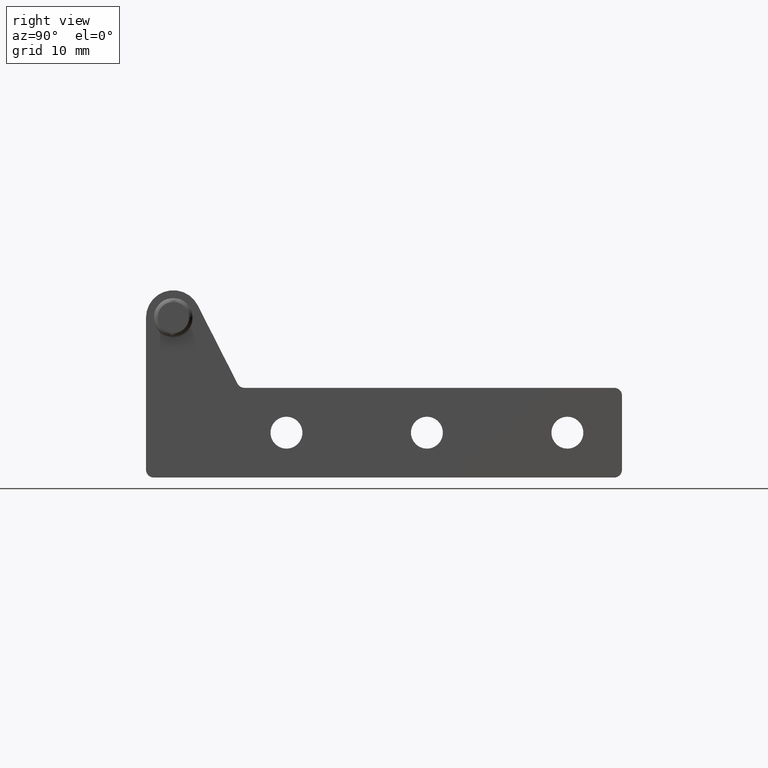
[diagram: clean part render]
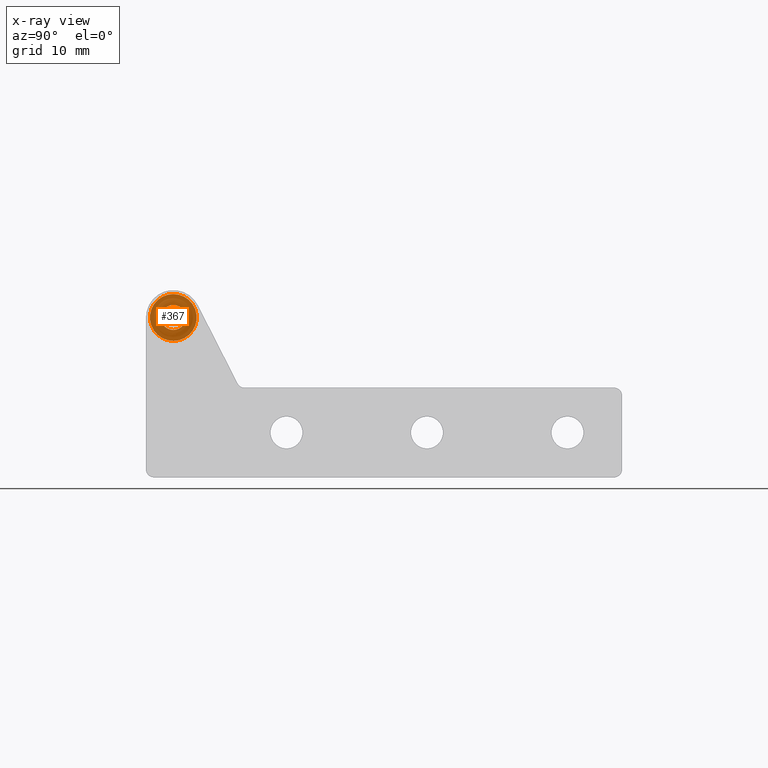
[diagram: x-ray — body ghosted, one internal face saturated and labeled with its STEP entity id]
A machine part, right view, then the same camera in x-ray: the body is ghosted and one INTERNAL B-rep face — a face not visible from any outside direction — is saturated and labeled: STEP entity #367.
In plain terms, the highlighted planar face has unit normal (-1, 0, 0).
Its self-contained STEP definition (entity closure, byte-faithful):
#367=ADVANCED_FACE('',(#804,#805),#803,.T.);
#803=PLANE('',#2097);
#804=FACE_OUTER_BOUND('',#2098,.T.);
#805=FACE_BOUND('',#2099,.T.);
#2094=CARTESIAN_POINT('',(-6.23538290725E+000,5.00000000000E-001,-6.90000000000E+000));
#2095=DIRECTION('',(-0.00000000000E+000,1.00000000000E+000,0.00000000000E+000));
#2096=DIRECTION('',(0.00000000000E+000,0.00000000000E+000,1.00000000000E+000));
#2097=AXIS2_PLACEMENT_3D('',#2094,#2095,#2096);
#2098=EDGE_LOOP('',(#2956,#2957));
#2099=EDGE_LOOP('',(#2958,#2959));
#2956=ORIENTED_EDGE('',*,*,#3509,.F.);
#2957=ORIENTED_EDGE('',*,*,#3510,.F.);
#2958=ORIENTED_EDGE('',*,*,#3511,.T.);
#2959=ORIENTED_EDGE('',*,*,#3512,.T.);
#3509=EDGE_CURVE('',#4271,#4272,#4273,.T.);
#3510=EDGE_CURVE('',#4272,#4271,#4279,.T.);
#3511=EDGE_CURVE('',#4285,#4286,#4287,.T.);
#3512=EDGE_CURVE('',#4286,#4285,#4293,.T.);
#4271=VERTEX_POINT('',#6163);
#4272=VERTEX_POINT('',#6164);
#4273=CIRCLE('',#6168,3.00000000000E+000);
#4279=CIRCLE('',#6172,3.00000000000E+000);
#4285=VERTEX_POINT('',#6173);
#4286=VERTEX_POINT('',#6174);
#4287=CIRCLE('',#6178,1.60000000000E+000);
#4293=CIRCLE('',#6182,1.60000000000E+000);
#6163=CARTESIAN_POINT('',(5.92118946467E-016,5.00000000000E-001,-3.00000000000E+000));
#6164=CARTESIAN_POINT('',(0.00000000000E+000,5.00000000000E-001,3.00000000000E+000));
#6165=CARTESIAN_POINT('',(0.00000000000E+000,5.00000000000E-001,0.00000000000E+000));
#6166=DIRECTION('',(0.00000000000E+000,-1.00000000000E+000,0.00000000000E+000));
#6167=DIRECTION('',(-1.22460635382E-016,0.00000000000E+000,1.00000000000E+000));
#6168=AXIS2_PLACEMENT_3D('',#6165,#6166,#6167);
#6169=CARTESIAN_POINT('',(0.00000000000E+000,5.00000000000E-001,0.00000000000E+000));
#6170=DIRECTION('',(0.00000000000E+000,-1.00000000000E+000,0.00000000000E+000));
#6171=DIRECTION('',(-1.22460635382E-016,0.00000000000E+000,1.00000000000E+000));
#6172=AXIS2_PLACEMENT_3D('',#6169,#6170,#6171);
#6173=CARTESIAN_POINT('',(0.00000000000E+000,5.00000000000E-001,1.60000000000E+000));
#6174=CARTESIAN_POINT('',(2.22044604925E-016,5.00000000000E-001,-1.60000000000E+000));
#6175=CARTESIAN_POINT('',(0.00000000000E+000,5.00000000000E-001,0.00000000000E+000));
#6176=DIRECTION('',(0.00000000000E+000,-1.00000000000E+000,0.00000000000E+000));
#6177=DIRECTION('',(-1.22460635382E-016,0.00000000000E+000,1.00000000000E+000));
#6178=AXIS2_PLACEMENT_3D('',#6175,#6176,#6177);
#6179=CARTESIAN_POINT('',(0.00000000000E+000,5.00000000000E-001,0.00000000000E+000));
#6180=DIRECTION('',(0.00000000000E+000,-1.00000000000E+000,0.00000000000E+000));
#6181=DIRECTION('',(-1.22460635382E-016,0.00000000000E+000,1.00000000000E+000));
#6182=AXIS2_PLACEMENT_3D('',#6179,#6180,#6181);